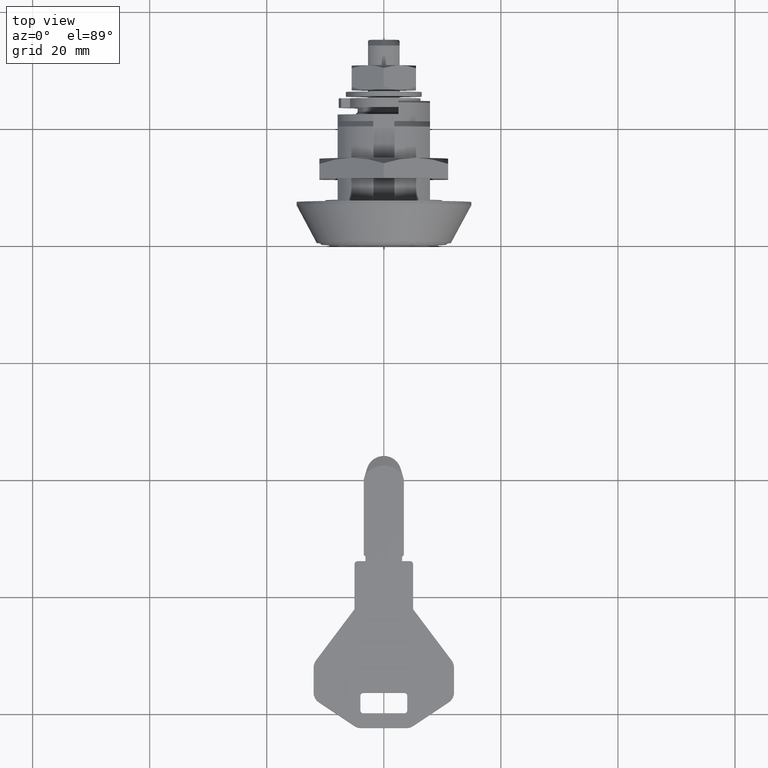
[diagram: clean part render]
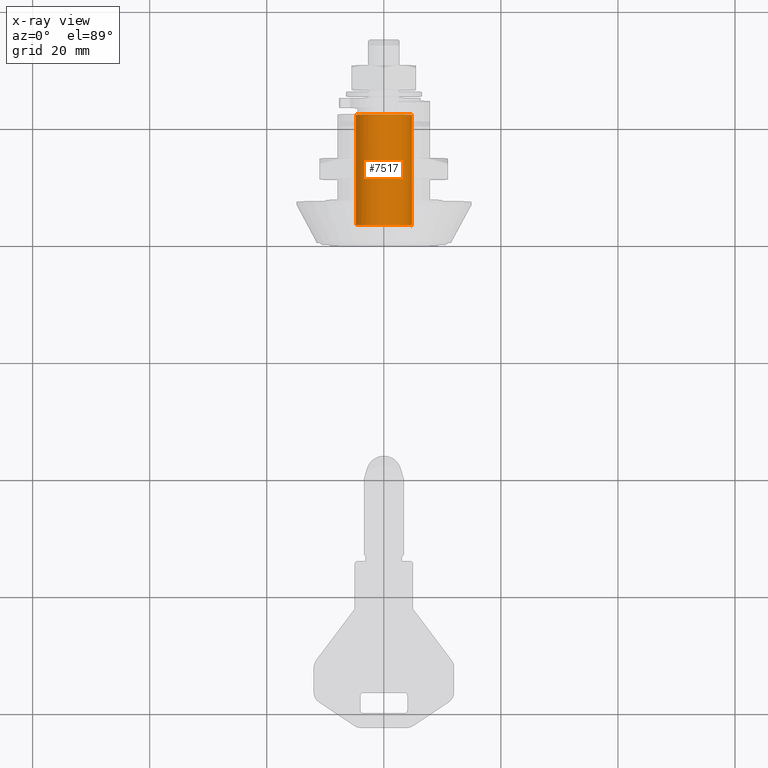
[diagram: x-ray — body ghosted, one internal face saturated and labeled with its STEP entity id]
A machine part, top view, then the same camera in x-ray: the body is ghosted and one INTERNAL B-rep face — a face not visible from any outside direction — is saturated and labeled: STEP entity #7517.
In plain terms, the highlighted face is a freeform B-spline surface patch.
Its self-contained STEP definition (entity closure, byte-faithful):
#7350=CARTESIAN_POINT('',(3.300000000000000,4.762877826380728,-0.595814410115712));
#7351=VERTEX_POINT('',#7350);
#7367=CARTESIAN_POINT('',(3.299999999999999,-4.799817230746138,0.041887370793218));
#7368=VERTEX_POINT('',#7367);
#7384=CARTESIAN_POINT('',(22.199999999999999,-4.799817230746421,0.041887370760816));
#7385=VERTEX_POINT('',#7384);
#7386=CARTESIAN_POINT('',(22.199999999999999,-4.799817230746421,0.041887370760816));
#7387=CARTESIAN_POINT('',(3.299999999999999,-4.799817230746138,0.041887370793218));
#7388=QUASI_UNIFORM_CURVE('',1,(#7386,#7387),.UNSPECIFIED.,.F.,.U.);
#7389=EDGE_CURVE('',#7385,#7368,#7388,.T.);
#7408=CARTESIAN_POINT('',(22.199999999999999,4.762878908323616,-0.595805761050369));
#7409=VERTEX_POINT('',#7408);
#7423=CARTESIAN_POINT('',(22.199999999999999,4.762878908323616,-0.595805761050369));
#7424=CARTESIAN_POINT('',(3.300000000000000,4.762877826380728,-0.595814410115712));
#7425=QUASI_UNIFORM_CURVE('',1,(#7423,#7424),.UNSPECIFIED.,.F.,.U.);
#7426=EDGE_CURVE('',#7409,#7351,#7425,.T.);
#7431=CARTESIAN_POINT('',(22.672499999999999,-4.799817230749635,0.041887370392526));
#7432=CARTESIAN_POINT('',(22.672499999999999,-4.757929860357107,4.841704601138565));
#7433=CARTESIAN_POINT('',(22.672499999999999,0.041887370388931,4.799817230746039));
#7434=CARTESIAN_POINT('',(22.672499999999999,4.841704601134970,4.757929860353513));
#7435=CARTESIAN_POINT('',(22.672499999999999,4.799817230742444,-0.041887370392526));
#7436=CARTESIAN_POINT('',(22.672499999999999,4.797390870083726,-0.319920763001767));
#7437=CARTESIAN_POINT('',(22.672500000000007,4.762877826396715,-0.595814409987900));
#7438=CARTESIAN_POINT('',(2.815687499999999,-4.799817230749635,0.041887370392526));
#7439=CARTESIAN_POINT('',(2.815687500000000,-4.757929860357107,4.841704601138565));
#7440=CARTESIAN_POINT('',(2.815687499999999,0.041887370388931,4.799817230746039));
#7441=CARTESIAN_POINT('',(2.815687500000000,4.841704601134970,4.757929860353513));
#7442=CARTESIAN_POINT('',(2.815687499999999,4.799817230742444,-0.041887370392526));
#7443=CARTESIAN_POINT('',(2.815687499999999,4.797390870083726,-0.319920763001767));
#7444=CARTESIAN_POINT('',(2.815687500000000,4.762877826396715,-0.595814409987900));
#7452=(BOUNDED_SURFACE()B_SPLINE_SURFACE(2,1,((#7431,#7438),(#7432,#7439),(#7433,#7440),(#7434,#7441),(#7435,#7442),(#7436,#7443),(#7437,#7444)),.UNSPECIFIED.,.F.,.F.,.U.)B_SPLINE_SURFACE_WITH_KNOTS((3,2,2,3),(2,2),(0.0,7.952900397626416,15.905800795252830,16.542032827062950),(0.0,19.856812500000011),.UNSPECIFIED.)GEOMETRIC_REPRESENTATION_ITEM()RATIONAL_B_SPLINE_SURFACE(((1.0,1.0),(0.707106781186548,0.707106781186548),(1.0,1.0),(0.707106781186548,0.707106781186548),(1.0,1.0),(0.976568542494924,0.976568542494924),(0.956886118190660,0.956886118190660)))REPRESENTATION_ITEM('')SURFACE());
#7453=CARTESIAN_POINT('',(3.300000000000000,-3.595346E-012,4.800000000038019));
#7454=VERTEX_POINT('',#7453);
#7455=CARTESIAN_POINT('',(3.300000000000000,-3.595346E-012,4.800000000038019));
#7456=CARTESIAN_POINT('',(3.300000000000000,4.800000000034424,4.800000000038019));
#7457=CARTESIAN_POINT('',(3.300000000000000,4.800000000034425,0.0));
#7458=CARTESIAN_POINT('',(3.300000000000000,4.800000000034425,-0.299063652292450));
#7459=CARTESIAN_POINT('',(3.300000000000000,4.762877826380729,-0.595814410115712));
#7467=(BOUNDED_CURVE()B_SPLINE_CURVE(2,(#7455,#7456,#7457,#7458,#7459),.UNSPECIFIED.,.F.,.U.)B_SPLINE_CURVE_WITH_KNOTS((3,2,3),(0.0,0.250000000000000,0.271473928979752),.UNSPECIFIED.)CURVE()GEOMETRIC_REPRESENTATION_ITEM()RATIONAL_B_SPLINE_CURVE((1.0,0.707106781186548,1.0,0.974841727282195,0.954005430257154))REPRESENTATION_ITEM(''));
#7468=EDGE_CURVE('',#7454,#7351,#7467,.T.);
#7469=ORIENTED_EDGE('',*,*,#7468,.T.);
#7470=ORIENTED_EDGE('',*,*,#7426,.F.);
#7471=CARTESIAN_POINT('',(22.199999999999999,-3.595346E-012,4.800000000038019));
#7472=VERTEX_POINT('',#7471);
#7473=CARTESIAN_POINT('',(22.199999999999996,4.762878908323616,-0.595805761050369));
#7474=CARTESIAN_POINT('',(22.199999999999996,4.800000000034425,-0.299059277072419));
#7475=CARTESIAN_POINT('',(22.199999999999999,4.800000000034425,0.0));
#7476=CARTESIAN_POINT('',(22.200000000000006,4.800000000034424,4.800000000038019));
#7477=CARTESIAN_POINT('',(22.199999999999999,-3.595346E-012,4.800000000038019));
#7485=(BOUNDED_CURVE()B_SPLINE_CURVE(2,(#7473,#7474,#7475,#7476,#7477),.UNSPECIFIED.,.F.,.U.)B_SPLINE_CURVE_WITH_KNOTS((3,2,3),(0.728526377274444,0.750000000000000,1.0),.UNSPECIFIED.)CURVE()GEOMETRIC_REPRESENTATION_ITEM()RATIONAL_B_SPLINE_CURVE((0.954006024579027,0.974842086081305,1.0,0.707106781186548,1.0))REPRESENTATION_ITEM(''));
#7486=EDGE_CURVE('',#7409,#7472,#7485,.T.);
#7487=ORIENTED_EDGE('',*,*,#7486,.T.);
#7488=CARTESIAN_POINT('',(22.199999999999999,-3.595346E-012,4.800000000038019));
#7489=CARTESIAN_POINT('',(22.200000000000003,-4.758293810166945,4.800000000038020));
#7490=CARTESIAN_POINT('',(22.199999999999996,-4.799817230746421,0.041887370760816));
#7498=(BOUNDED_CURVE()B_SPLINE_CURVE(2,(#7488,#7489,#7490),.UNSPECIFIED.,.F.,.U.)B_SPLINE_CURVE_WITH_KNOTS((3,3),(0.0,0.248460105637982),.UNSPECIFIED.)CURVE()GEOMETRIC_REPRESENTATION_ITEM()RATIONAL_B_SPLINE_CURVE((1.0,0.708910879651844,0.996414028037849))REPRESENTATION_ITEM(''));
#7499=EDGE_CURVE('',#7472,#7385,#7498,.T.);
#7500=ORIENTED_EDGE('',*,*,#7499,.T.);
#7501=ORIENTED_EDGE('',*,*,#7389,.T.);
#7502=CARTESIAN_POINT('',(3.299999999999999,-4.799817230746138,0.041887370793218));
#7503=CARTESIAN_POINT('',(3.300000000000000,-4.758293810102698,4.800000000038018));
#7504=CARTESIAN_POINT('',(3.300000000000000,-3.595346E-012,4.800000000038019));
#7512=(BOUNDED_CURVE()B_SPLINE_CURVE(2,(#7502,#7503,#7504),.UNSPECIFIED.,.F.,.U.)B_SPLINE_CURVE_WITH_KNOTS((3,3),(0.751539894364396,1.0),.UNSPECIFIED.)CURVE()GEOMETRIC_REPRESENTATION_ITEM()RATIONAL_B_SPLINE_CURVE((0.996414028032345,0.708910879654630,1.0))REPRESENTATION_ITEM(''));
#7513=EDGE_CURVE('',#7368,#7454,#7512,.T.);
#7514=ORIENTED_EDGE('',*,*,#7513,.T.);
#7515=EDGE_LOOP('',(#7469,#7470,#7487,#7500,#7501,#7514));
#7516=FACE_OUTER_BOUND('',#7515,.T.);
#7517=ADVANCED_FACE('',(#7516),#7452,.F.);